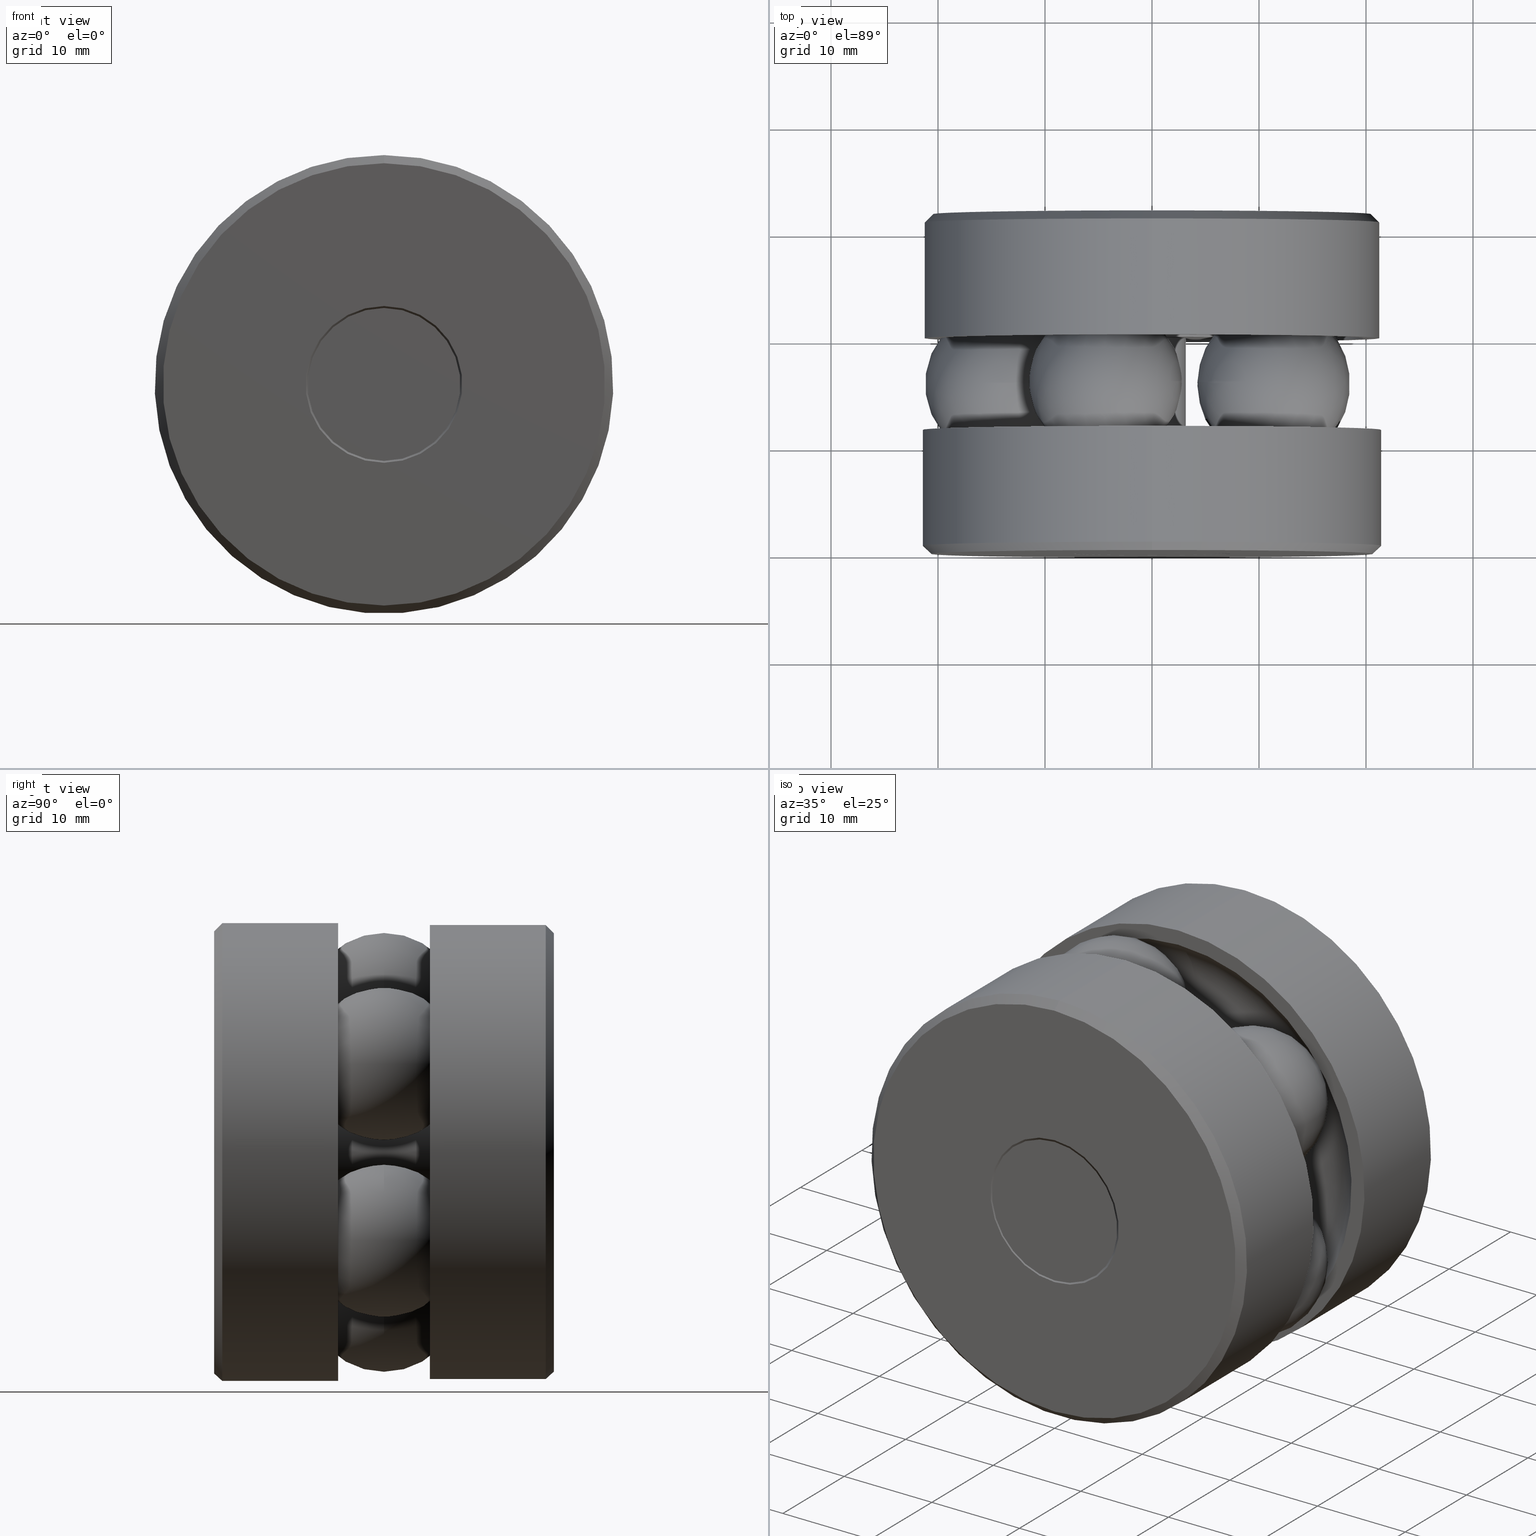
[diagram: canonical four-view strip — front | top / right | iso, engineering-drawing reading convention]
A machine part, canonical four-view strip (front | top / right | iso — engineering-drawing reading convention). The complete STEP part file that produces these views, byte-faithful:
ISO-10303-21;
HEADER;
FILE_DESCRIPTION (( 'STEP AP203' ),
    '1' );
FILE_NAME ('T-114RG_T-114RG-1011.step',
    '2016-02-04T15:34:12',
    ( '' ),
    ( '' ),
    'SwSTEP 2.0',
    'SolidWorks 2016',
    '' );
FILE_SCHEMA (( 'CONFIG_CONTROL_DESIGN' ));
ENDSEC;

DATA;
#1 = PLANE ( 'NONE',  #458 ) ;
#2 = DIRECTION ( 'NONE',  ( 0.0000000000000000000, 0.0000000000000000000, 1.000000000000000000 ) ) ;
#3 = CLOSED_SHELL ( 'NONE', ( #284, #32, #530, #192, #140, #474, #81, #34 ) ) ;
#4 = CARTESIAN_POINT ( 'NONE',  ( 0.0000000000000000000, 0.1583210678118654700, 0.0000000000000000000 ) ) ;
#5 = VERTEX_POINT ( 'NONE', #49 ) ;
#6 = FACE_BOUND ( 'NONE', #233, .T. ) ;
#7 = EDGE_CURVE ( 'NONE', #71, #71, #379, .T. ) ;
#8 = CARTESIAN_POINT ( 'NONE',  ( -0.2883210678118637800, -4.708883186648242100E-017, 0.0000000000000000000 ) ) ;
#9 = ORIENTED_EDGE ( 'NONE', *, *, #59, .F. ) ;
#10 = EDGE_LOOP ( 'NONE', ( #301 ) ) ;
#11 = DIRECTION ( 'NONE',  ( 0.0000000000000000000, 0.0000000000000000000, 1.000000000000000000 ) ) ;
#12 = CALENDAR_DATE ( 2016, 4, 2 ) ;
#13 = DIRECTION ( 'NONE',  ( 0.0000000000000000000, 0.0000000000000000000, 1.000000000000000000 ) ) ;
#14 = CARTESIAN_POINT ( 'NONE',  ( 0.0000000000000000000, 1.250000000000000000, 0.0000000000000000000 ) ) ;
#15 = FACE_OUTER_BOUND ( 'NONE', #168, .T. ) ;
#16 = AXIS2_PLACEMENT_3D ( 'NONE', #292, #538, #308 ) ;
#17 = ORIENTED_EDGE ( 'NONE', *, *, #314, .F. ) ;
#18 = DIRECTION ( 'NONE',  ( -0.0000000000000000000, 1.000000000000000000, -0.0000000000000000000 ) ) ;
#19 = DIRECTION ( 'NONE',  ( 0.0000000000000000000, 0.0000000000000000000, 1.000000000000000000 ) ) ;
#20 = EDGE_CURVE ( 'NONE', #21, #21, #477, .T. ) ;
#21 = VERTEX_POINT ( 'NONE', #332 ) ;
#22 = DIRECTION ( 'NONE',  ( 1.000000000000000000, 0.0000000000000000000, 0.0000000000000000000 ) ) ;
#23 = FACE_OUTER_BOUND ( 'NONE', #294, .T. ) ;
#24 = EDGE_LOOP ( 'NONE', ( #320 ) ) ;
#25 = EDGE_LOOP ( 'NONE', ( #182 ) ) ;
#26 = DIRECTION ( 'NONE',  ( 0.0000000000000000000, 0.0000000000000000000, 1.000000000000000000 ) ) ;
#27 = EDGE_LOOP ( 'NONE', ( #496 ) ) ;
#28 = DATE_AND_TIME ( #171, #295 ) ;
#29 = FACE_OUTER_BOUND ( 'NONE', #175, .T. ) ;
#30 = DIRECTION ( 'NONE',  ( 0.0000000000000000000, 0.0000000000000000000, 1.000000000000000000 ) ) ;
#31 = ORIENTED_EDGE ( 'NONE', *, *, #7, .F. ) ;
#32 = ADVANCED_FACE ( 'NONE', ( #273, #151 ), #262, .F. ) ;
#33 =( NAMED_UNIT ( * ) PLANE_ANGLE_UNIT ( ) SI_UNIT ( $, .RADIAN. ) );
#34 = ADVANCED_FACE ( 'NONE', ( #23, #132 ), #56, .T. ) ;
#35 = FACE_OUTER_BOUND ( 'NONE', #258, .T. ) ;
#36 = DIRECTION ( 'NONE',  ( -0.0000000000000000000, 1.000000000000000000, -0.0000000000000000000 ) ) ;
#37 = EDGE_LOOP ( 'NONE', ( #527 ) ) ;
#38 =( CONVERSION_BASED_UNIT ( 'INCH', #215 ) LENGTH_UNIT ( ) NAMED_UNIT ( #439 ) );
#39 = AXIS2_PLACEMENT_3D ( 'NONE', #40, #367, #88 ) ;
#40 = CARTESIAN_POINT ( 'NONE',  ( 0.0000000000000000000, 0.0000000000000000000, 0.0000000000000000000 ) ) ;
#41 = MANIFOLD_SOLID_BREP ( 'Revolve2[2]', #3 ) ;
#42 = CARTESIAN_POINT ( 'NONE',  ( 0.0000000000000000000, 0.7936000000000000800, 0.1300000000000000900 ) ) ;
#43 = ORIENTED_EDGE ( 'NONE', *, *, #340, .T. ) ;
#44 = CARTESIAN_POINT ( 'NONE',  ( 0.0000000000000000000, 1.250000000000000000, 0.0000000000000000000 ) ) ;
#45 = AXIS2_PLACEMENT_3D ( 'NONE', #210, #459, #380 ) ;
#46 = CARTESIAN_POINT ( 'NONE',  ( 0.0000000000000000000, 0.4563999999999996900, 0.7785499999999998500 ) ) ;
#47 = CARTESIAN_POINT ( 'NONE',  ( 0.0000000000000000000, 1.250000000000000000, 0.0000000000000000000 ) ) ;
#48 = PERSON_AND_ORGANIZATION ( #489, #304 ) ;
#49 = CARTESIAN_POINT ( 'NONE',  ( 0.0000000000000000000, 0.4563999999999996900, 0.8437500000000000000 ) ) ;
#50 = CIRCLE ( 'NONE', #450, 0.2812499999999989500 ) ;
#51 = ORIENTED_EDGE ( 'NONE', *, *, #288, .T. ) ;
#52 = EDGE_LOOP ( 'NONE', ( #520 ) ) ;
#53 = DIRECTION ( 'NONE',  ( -0.0000000000000000000, 1.000000000000000000, -0.0000000000000000000 ) ) ;
#54 = AXIS2_PLACEMENT_3D ( 'NONE', #4, #64, #138 ) ;
#55 = ORIENTED_EDGE ( 'NONE', *, *, #230, .T. ) ;
#56 = PLANE ( 'NONE',  #218 ) ;
#57 = FACE_BOUND ( 'NONE', #78, .T. ) ;
#58 = EDGE_LOOP ( 'NONE', ( #120 ) ) ;
#59 = EDGE_CURVE ( 'NONE', #476, #476, #369, .T. ) ;
#60 = DIRECTION ( 'NONE',  ( -0.0000000000000000000, 1.000000000000000000, -0.0000000000000000000 ) ) ;
#61 = ORIENTED_EDGE ( 'NONE', *, *, #390, .T. ) ;
#62 = DIRECTION ( 'NONE',  ( 0.0000000000000000000, -1.000000000000000000, 0.0000000000000000000 ) ) ;
#63 = CIRCLE ( 'NONE', #540, 0.2883210678118640100 ) ;
#64 = DIRECTION ( 'NONE',  ( -0.0000000000000000000, 1.000000000000000000, -0.0000000000000000000 ) ) ;
#65 = DIRECTION ( 'NONE',  ( 0.0000000000000000000, 0.0000000000000000000, 1.000000000000000000 ) ) ;
#66 = EDGE_LOOP ( 'NONE', ( #94 ) ) ;
#67 = EDGE_LOOP ( 'NONE', ( #101 ) ) ;
#68 = DIRECTION ( 'NONE',  ( -0.0000000000000000000, 1.000000000000000000, -0.0000000000000000000 ) ) ;
#69 = APPLICATION_PROTOCOL_DEFINITION ( 'international standard', 'config_control_design', 1994, #97 ) ;
#70 = DIRECTION ( 'NONE',  ( -0.0000000000000000000, 1.000000000000000000, -0.0000000000000000000 ) ) ;
#71 = VERTEX_POINT ( 'NONE', #46 ) ;
#72 = EDGE_LOOP ( 'NONE', ( #153 ) ) ;
#73 = CC_DESIGN_PERSON_AND_ORGANIZATION_ASSIGNMENT ( #184, #479, ( #515 ) ) ;
#74 = EDGE_LOOP ( 'NONE', ( #17 ) ) ;
#75 = DIRECTION ( 'NONE',  ( 0.0000000000000000000, 0.0000000000000000000, 1.000000000000000000 ) ) ;
#76 = AXIS2_PLACEMENT_3D ( 'NONE', #457, #128, #117 ) ;
#77 = FACE_OUTER_BOUND ( 'NONE', #229, .T. ) ;
#78 = EDGE_LOOP ( 'NONE', ( #31 ) ) ;
#79 = CLOSED_SHELL ( 'NONE', ( #399 ) ) ;
#80 = MECHANICAL_CONTEXT ( 'NONE', #97, 'mechanical' ) ;
#81 = ADVANCED_FACE ( 'NONE', ( #534, #465 ), #444, .T. ) ;
#82 = LOCAL_TIME ( 10, 34, 12.00000000000000000, #225 ) ;
#83 = CIRCLE ( 'NONE', #127, 0.1250000000000001900 ) ;
#84 = AXIS2_PLACEMENT_3D ( 'NONE', #190, #188, #22 ) ;
#85 = EDGE_LOOP ( 'NONE', ( #143 ) ) ;
#86 = DIRECTION ( 'NONE',  ( -0.0000000000000000000, 1.000000000000000000, -0.0000000000000000000 ) ) ;
#87 = DIRECTION ( 'NONE',  ( 0.0000000000000000000, -1.000000000000000000, 0.0000000000000000000 ) ) ;
#88 = DIRECTION ( 'NONE',  ( 1.000000000000000000, 0.0000000000000000000, 0.0000000000000000000 ) ) ;
#89 = ADVANCED_FACE ( 'NONE', ( #6, #355 ), #95, .T. ) ;
#90 = ORIENTED_EDGE ( 'NONE', *, *, #340, .F. ) ;
#91 = EDGE_CURVE ( 'NONE', #378, #378, #232, .T. ) ;
#92 = CARTESIAN_POINT ( 'NONE',  ( 0.0000000000000000000, 1.219999999999999500, 0.8367499999999999900 ) ) ;
#93 = DIRECTION ( 'NONE',  ( 0.0000000000000000000, -0.0000000000000000000, -1.000000000000000000 ) ) ;
#94 = ORIENTED_EDGE ( 'NONE', *, *, #7, .T. ) ;
#95 = CONICAL_SURFACE ( 'NONE', #275, 0.2812499999999989500, 0.7853981633974445000 ) ;
#96 = DIRECTION ( 'NONE',  ( 0.0000000000000000000, 0.0000000000000000000, 1.000000000000000000 ) ) ;
#97 = APPLICATION_CONTEXT ( 'configuration controlled 3d designs of mechanical parts and assemblies' ) ;
#98 = DIRECTION ( 'NONE',  ( -0.0000000000000000000, 1.000000000000000000, -0.0000000000000000000 ) ) ;
#99 = CARTESIAN_POINT ( 'NONE',  ( 0.0000000000000000000, 1.250000000000000000, 0.2883210678118640100 ) ) ;
#100 = ORIENTED_EDGE ( 'NONE', *, *, #20, .F. ) ;
#101 = ORIENTED_EDGE ( 'NONE', *, *, #441, .F. ) ;
#102 = AXIS2_PLACEMENT_3D ( 'NONE', #103, #152, #141 ) ;
#103 = CARTESIAN_POINT ( 'NONE',  ( -0.3289500000000000800, 0.4563999999999998100, 0.0000000000000000000 ) ) ;
#104 = CALENDAR_DATE ( 2016, 4, 2 ) ;
#105 = CYLINDRICAL_SURFACE ( 'NONE', #16, 0.8437500000000000000 ) ;
#106 = EDGE_LOOP ( 'NONE', ( #313 ) ) ;
#107 = DIRECTION ( 'NONE',  ( -0.0000000000000000000, 1.000000000000000000, -0.0000000000000000000 ) ) ;
#108 = DIRECTION ( 'NONE',  ( 0.0000000000000000000, -0.0000000000000000000, -1.000000000000000000 ) ) ;
#109 = CLOSED_SHELL ( 'NONE', ( #321 ) ) ;
#110 = CARTESIAN_POINT ( 'NONE',  ( 0.0000000000000000000, 0.4563999999999996900, 0.0000000000000000000 ) ) ;
#111 = PRODUCT_DEFINITION ( 'UNKNOWN', '', #274, #409 ) ;
#112 = VERTEX_POINT ( 'NONE', #253 ) ;
#113 = FACE_BOUND ( 'NONE', #311, .T. ) ;
#114 = CARTESIAN_POINT ( 'NONE',  ( 0.0000000000000000000, 0.7936000000000000800, 0.0000000000000000000 ) ) ;
#115 = AXIS2_PLACEMENT_3D ( 'NONE', #114, #70, #11 ) ;
#116 = CARTESIAN_POINT ( 'NONE',  ( 0.0000000000000000000, 1.093750000000000000, 0.0000000000000000000 ) ) ;
#117 = DIRECTION ( 'NONE',  ( 0.0000000000000000000, 0.0000000000000000000, 1.000000000000000000 ) ) ;
#118 = ORIENTED_EDGE ( 'NONE', *, *, #506, .T. ) ;
#119 = CARTESIAN_POINT ( 'NONE',  ( 0.0000000000000000000, -1.153371436285798000E-018, 0.0000000000000000000 ) ) ;
#120 = ORIENTED_EDGE ( 'NONE', *, *, #164, .T. ) ;
#121 = PERSON_AND_ORGANIZATION ( #489, #304 ) ;
#122 = CYLINDRICAL_SURFACE ( 'NONE', #494, 0.1250000000000001100 ) ;
#123 = CARTESIAN_POINT ( 'NONE',  ( 0.0000000000000000000, 0.0000000000000000000, 0.0000000000000000000 ) ) ;
#124 = DIRECTION ( 'NONE',  ( 0.0000000000000000000, 0.0000000000000000000, -1.000000000000000000 ) ) ;
#125 = ORIENTED_EDGE ( 'NONE', *, *, #314, .T. ) ;
#126 = DIRECTION ( 'NONE',  ( 0.0000000000000000000, 0.0000000000000000000, 1.000000000000000000 ) ) ;
#127 = AXIS2_PLACEMENT_3D ( 'NONE', #116, #107, #96 ) ;
#128 = DIRECTION ( 'NONE',  ( -0.0000000000000000000, 1.000000000000000000, -0.0000000000000000000 ) ) ;
#129 = CLOSED_SHELL ( 'NONE', ( #281, #242, #89, #361, #317 ) ) ;
#130 = EDGE_CURVE ( 'NONE', #272, #272, #454, .T. ) ;
#131 = VERTEX_POINT ( 'NONE', #533 ) ;
#132 = FACE_BOUND ( 'NONE', #72, .T. ) ;
#133 = EDGE_LOOP ( 'NONE', ( #90 ) ) ;
#134 = EDGE_LOOP ( 'NONE', ( #451 ) ) ;
#135 = DIRECTION ( 'NONE',  ( 0.3090169943749447300, 0.0000000000000000000, -0.9510565162951544200 ) ) ;
#136 = AXIS2_PLACEMENT_3D ( 'NONE', #224, #195, #330 ) ;
#137 = COORDINATED_UNIVERSAL_TIME_OFFSET ( 5, 0, .BEHIND. ) ;
#138 = DIRECTION ( 'NONE',  ( 0.0000000000000000000, 0.0000000000000000000, 1.000000000000000000 ) ) ;
#139 = FACE_OUTER_BOUND ( 'NONE', #67, .T. ) ;
#140 = ADVANCED_FACE ( 'NONE', ( #113, #517 ), #413, .T. ) ;
#141 = DIRECTION ( 'NONE',  ( 0.0000000000000000000, 0.0000000000000000000, 1.000000000000000000 ) ) ;
#142 = DIRECTION ( 'NONE',  ( -0.9510565162951544200, 0.0000000000000000000, -0.3090169943749447300 ) ) ;
#143 = ORIENTED_EDGE ( 'NONE', *, *, #506, .F. ) ;
#144 = ADVANCED_FACE ( 'NONE', ( #343, #522 ), #1, .T. ) ;
#145 = DIRECTION ( 'NONE',  ( -0.0000000000000000000, 1.000000000000000000, -0.0000000000000000000 ) ) ;
#146 = EDGE_LOOP ( 'NONE', ( #55 ) ) ;
#147 = DIRECTION ( 'NONE',  ( 0.0000000000000000000, -1.000000000000000000, 0.0000000000000000000 ) ) ;
#148 = VERTEX_POINT ( 'NONE', #92 ) ;
#149 = APPROVAL ( #400, 'UNSPECIFIED' ) ;
#150 = CARTESIAN_POINT ( 'NONE',  ( 0.0000000000000000000, 1.250000000000000000, 0.8067500000000003000 ) ) ;
#151 = FACE_OUTER_BOUND ( 'NONE', #221, .T. ) ;
#152 = DIRECTION ( 'NONE',  ( -0.0000000000000000000, 1.000000000000000000, 0.0000000000000000000 ) ) ;
#153 = ORIENTED_EDGE ( 'NONE', *, *, #230, .F. ) ;
#154 = ORIENTED_EDGE ( 'NONE', *, *, #490, .T. ) ;
#155 = DIRECTION ( 'NONE',  ( 0.0000000000000000000, 0.0000000000000000000, 1.000000000000000000 ) ) ;
#156 =( LENGTH_UNIT ( ) NAMED_UNIT ( * ) SI_UNIT ( $, .METRE. ) );
#157 = EDGE_LOOP ( 'NONE', ( #61 ) ) ;
#158 = LOCAL_TIME ( 10, 34, 12.00000000000000000, #277 ) ;
#159 = FACE_BOUND ( 'NONE', #282, .T. ) ;
#160 = EDGE_LOOP ( 'NONE', ( #208 ) ) ;
#161 = AXIS2_PLACEMENT_3D ( 'NONE', #245, #53, #26 ) ;
#162 = SHAPE_DEFINITION_REPRESENTATION ( #176, #270 ) ;
#163 = CLOSED_SHELL ( 'NONE', ( #500 ) ) ;
#164 = EDGE_CURVE ( 'NONE', #148, #148, #249, .T. ) ;
#165 = CARTESIAN_POINT ( 'NONE',  ( 0.0000000000000000000, 0.0000000000000000000, 0.0000000000000000000 ) ) ;
#166 = CARTESIAN_POINT ( 'NONE',  ( 0.0000000000000000000, 0.03000000000000013800, 0.0000000000000000000 ) ) ;
#167 = ORIENTED_EDGE ( 'NONE', *, *, #441, .T. ) ;
#168 = EDGE_LOOP ( 'NONE', ( #213 ) ) ;
#169 = CARTESIAN_POINT ( 'NONE',  ( 0.0000000000000000000, 0.6250000000000000000, 0.0000000000000000000 ) ) ;
#170 = EDGE_LOOP ( 'NONE', ( #186 ) ) ;
#171 = CALENDAR_DATE ( 2016, 4, 2 ) ;
#172 = FACE_BOUND ( 'NONE', #27, .T. ) ;
#173 = AXIS2_PLACEMENT_3D ( 'NONE', #362, #452, #418 ) ;
#174 = CARTESIAN_POINT ( 'NONE',  ( -0.1711181606351331300, 0.6250000000000000000, -0.5266475458984394300 ) ) ;
#175 = EDGE_LOOP ( 'NONE', ( #125 ) ) ;
#176 = PRODUCT_DEFINITION_SHAPE ( 'NONE', 'NONE',  #111 ) ;
#177 = DIRECTION ( 'NONE',  ( 0.3090169943749582200, 0.0000000000000000000, 0.9510565162951500900 ) ) ;
#178 = PERSON_AND_ORGANIZATION_ROLE ( 'classification_officer' ) ;
#179 = SPHERICAL_SURFACE ( 'NONE', #436, 0.2810000000000000800 ) ;
#180 = EDGE_LOOP ( 'NONE', ( #356 ) ) ;
#181 = CC_DESIGN_APPROVAL ( #149, ( #111 ) ) ;
#182 = ORIENTED_EDGE ( 'NONE', *, *, #199, .T. ) ;
#183 = AXIS2_PLACEMENT_3D ( 'NONE', #123, #98, #126 ) ;
#184 = PERSON_AND_ORGANIZATION ( #489, #304 ) ;
#185 = FACE_BOUND ( 'NONE', #85, .T. ) ;
#186 = ORIENTED_EDGE ( 'NONE', *, *, #199, .F. ) ;
#187 = DIRECTION ( 'NONE',  ( 0.9510565162951500900, 0.0000000000000000000, -0.3090169943749582200 ) ) ;
#188 = DIRECTION ( 'NONE',  ( 0.0000000000000000000, 0.0000000000000000000, -1.000000000000000000 ) ) ;
#189 = ORIENTED_EDGE ( 'NONE', *, *, #288, .F. ) ;
#190 = CARTESIAN_POINT ( 'NONE',  ( -0.5537500000000000800, 0.6250000000000000000, 0.0000000000000000000 ) ) ;
#191 = APPROVAL_ROLE ( '' ) ;
#192 = ADVANCED_FACE ( 'NONE', ( #77, #427 ), #329, .F. ) ;
#193 = AXIS2_PLACEMENT_3D ( 'NONE', #119, #87, #124 ) ;
#194 = CYLINDRICAL_SURFACE ( 'NONE', #283, 0.8367499999999999900 ) ;
#195 = DIRECTION ( 'NONE',  ( -0.0000000000000000000, 1.000000000000000000, -0.0000000000000000000 ) ) ;
#196 = EDGE_LOOP ( 'NONE', ( #433 ) ) ;
#197 = APPROVAL_STATUS ( 'not_yet_approved' ) ;
#198 = ADVANCED_FACE ( 'NONE', ( #315, #216 ), #416, .F. ) ;
#199 = EDGE_CURVE ( 'NONE', #5, #5, #206, .T. ) ;
#200 = PLANE ( 'NONE',  #486 ) ;
#201 = CLOSED_SHELL ( 'NONE', ( #431 ) ) ;
#202 = MANIFOLD_SOLID_BREP ( 'Revolve2[3]', #228 ) ;
#203 = CARTESIAN_POINT ( 'NONE',  ( 0.0000000000000000000, 0.4563999999999998100, 0.3289500000000001300 ) ) ;
#204 = DATE_TIME_ROLE ( 'classification_date' ) ;
#205 = CARTESIAN_POINT ( 'NONE',  ( 0.0000000000000000000, 0.4563999999999998600, 0.1300000000000000000 ) ) ;
#206 = CIRCLE ( 'NONE', #481, 0.8437500000000000000 ) ;
#207 = DIRECTION ( 'NONE',  ( -0.0000000000000000000, 1.000000000000000000, -0.0000000000000000000 ) ) ;
#208 = ORIENTED_EDGE ( 'NONE', *, *, #371, .T. ) ;
#209 = ORIENTED_EDGE ( 'NONE', *, *, #91, .T. ) ;
#210 = CARTESIAN_POINT ( 'NONE',  ( 0.0000000000000000000, 0.4563999999999996900, 0.0000000000000000000 ) ) ;
#211 = FACE_OUTER_BOUND ( 'NONE', #462, .T. ) ;
#212 = EDGE_LOOP ( 'NONE', ( #118 ) ) ;
#213 = ORIENTED_EDGE ( 'NONE', *, *, #260, .T. ) ;
#214 = CC_DESIGN_PERSON_AND_ORGANIZATION_ASSIGNMENT ( #384, #370, ( #111 ) ) ;
#215 = LENGTH_MEASURE_WITH_UNIT ( LENGTH_MEASURE( 0.02539999999999999900 ), #156 );
#216 = FACE_OUTER_BOUND ( 'NONE', #24, .T. ) ;
#217 = CARTESIAN_POINT ( 'NONE',  ( -0.2812499999999987200, 0.0000000000000000000, 0.0000000000000000000 ) ) ;
#218 = AXIS2_PLACEMENT_3D ( 'NONE', #324, #344, #510 ) ;
#219 = DIRECTION ( 'NONE',  ( 0.0000000000000000000, 0.0000000000000000000, 1.000000000000000000 ) ) ;
#220 = DIRECTION ( 'NONE',  ( -0.0000000000000000000, 1.000000000000000000, -0.0000000000000000000 ) ) ;
#221 = EDGE_LOOP ( 'NONE', ( #9 ) ) ;
#222 = EDGE_LOOP ( 'NONE', ( #43 ) ) ;
#223 = PLANE ( 'NONE',  #269 ) ;
#224 = CARTESIAN_POINT ( 'NONE',  ( 0.0000000000000000000, 0.1562499999999999700, 0.0000000000000000000 ) ) ;
#225 = COORDINATED_UNIVERSAL_TIME_OFFSET ( 5, 0, .BEHIND. ) ;
#226 = CARTESIAN_POINT ( 'NONE',  ( 0.0000000000000000000, 0.6250000000000000000, 0.0000000000000000000 ) ) ;
#227 = FACE_BOUND ( 'NONE', #134, .T. ) ;
#228 = CLOSED_SHELL ( 'NONE', ( #395, #358, #144, #471, #435, #240, #198, #501 ) ) ;
#229 = EDGE_LOOP ( 'NONE', ( #51 ) ) ;
#230 = EDGE_CURVE ( 'NONE', #464, #464, #63, .T. ) ;
#231 = VERTEX_POINT ( 'NONE', #203 ) ;
#232 = CIRCLE ( 'NONE', #303, 0.7785499999999998500 ) ;
#233 = EDGE_LOOP ( 'NONE', ( #167 ) ) ;
#234 = EDGE_LOOP ( 'NONE', ( #100 ) ) ;
#235 = CARTESIAN_POINT ( 'NONE',  ( 0.4479931606351243400, 0.6250000000000000000, -0.3254860834569610100 ) ) ;
#236 = AXIS2_PLACEMENT_3D ( 'NONE', #306, #86, #219 ) ;
#237 = LOCAL_TIME ( 10, 34, 12.00000000000000000, #348 ) ;
#238 = CIRCLE ( 'NONE', #528, 0.8437500000000000000 ) ;
#239 = EDGE_LOOP ( 'NONE', ( #154 ) ) ;
#240 = ADVANCED_FACE ( 'NONE', ( #407, #185 ), #429, .T. ) ;
#241 = DIRECTION ( 'NONE',  ( -0.0000000000000000000, 1.000000000000000000, 0.0000000000000000000 ) ) ;
#242 = ADVANCED_FACE ( 'NONE', ( #508 ), #349, .T. ) ;
#243 = CARTESIAN_POINT ( 'NONE',  ( 0.0000000000000000000, 1.091678932188134600, 0.1300000000000001700 ) ) ;
#244 = CARTESIAN_POINT ( 'NONE',  ( 0.0000000000000000000, 0.7936000000000000800, 0.0000000000000000000 ) ) ;
#245 = CARTESIAN_POINT ( 'NONE',  ( 0.0000000000000000000, 0.0000000000000000000, 0.0000000000000000000 ) ) ;
#246 = CC_DESIGN_DATE_AND_TIME_ASSIGNMENT ( #468, #470, ( #111 ) ) ;
#247 = CARTESIAN_POINT ( 'NONE',  ( 0.0000000000000000000, 0.1583210678118654700, 0.1300000000000000000 ) ) ;
#248 = VERTEX_POINT ( 'NONE', #285 ) ;
#249 = CIRCLE ( 'NONE', #428, 0.8367499999999999900 ) ;
#250 = CARTESIAN_POINT ( 'NONE',  ( 0.0000000000000000000, 0.7936000000000000800, 0.7785499999999998500 ) ) ;
#251 = DIRECTION ( 'NONE',  ( -0.0000000000000000000, 1.000000000000000000, -0.0000000000000000000 ) ) ;
#252 = AXIS2_PLACEMENT_3D ( 'NONE', #47, #62, #425 ) ;
#253 = CARTESIAN_POINT ( 'NONE',  ( 0.0000000000000000000, 1.093750000000000000, 0.1250000000000001900 ) ) ;
#254 = DIRECTION ( 'NONE',  ( 0.0000000000000000000, -0.0000000000000000000, -1.000000000000000000 ) ) ;
#255 = DIRECTION ( 'NONE',  ( 0.0000000000000000000, 0.0000000000000000000, 1.000000000000000000 ) ) ;
#256 = APPROVAL_DATE_TIME ( #357, #302 ) ;
#257 = CONICAL_SURFACE ( 'NONE', #419, 0.8437500000000000000, 0.7853981633974437300 ) ;
#258 = EDGE_LOOP ( 'NONE', ( #189 ) ) ;
#259 = AXIS2_PLACEMENT_3D ( 'NONE', #278, #443, #446 ) ;
#260 = EDGE_CURVE ( 'NONE', #368, #368, #498, .T. ) ;
#261 = VERTEX_POINT ( 'NONE', #537 ) ;
#262 = CYLINDRICAL_SURFACE ( 'NONE', #183, 0.1300000000000001400 ) ;
#263 = DIRECTION ( 'NONE',  ( 0.0000000000000000000, -0.0000000000000000000, -1.000000000000000000 ) ) ;
#264 = EDGE_LOOP ( 'NONE', ( #423 ) ) ;
#265 = DIRECTION ( 'NONE',  ( 0.0000000000000000000, -1.000000000000000000, 0.0000000000000000000 ) ) ;
#266 = DIRECTION ( 'NONE',  ( 0.0000000000000000000, 0.0000000000000000000, 1.000000000000000000 ) ) ;
#267 = APPROVAL_PERSON_ORGANIZATION ( #373, #302, #402 ) ;
#268 = CONICAL_SURFACE ( 'NONE', #347, 0.1250000000000000300, 0.7853981633974442800 ) ;
#269 = AXIS2_PLACEMENT_3D ( 'NONE', #217, #352, #108 ) ;
#270 = ADVANCED_BREP_SHAPE_REPRESENTATION ( 'T-114RG_T-114RG-1011', ( #365, #41, #202, #382, #493, #484, #447, #325, #39 ), #463 ) ;
#271 = DIRECTION ( 'NONE',  ( 0.0000000000000000000, 0.0000000000000000000, 1.000000000000000000 ) ) ;
#272 = VERTEX_POINT ( 'NONE', #150 ) ;
#273 = FACE_OUTER_BOUND ( 'NONE', #239, .T. ) ;
#274 = PRODUCT_DEFINITION_FORMATION_WITH_SPECIFIED_SOURCE ( 'ANY', '', #515, .NOT_KNOWN. ) ;
#275 = AXIS2_PLACEMENT_3D ( 'NONE', #14, #417, #19 ) ;
#276 = DIRECTION ( 'NONE',  ( -0.0000000000000000000, 1.000000000000000000, -0.0000000000000000000 ) ) ;
#277 = COORDINATED_UNIVERSAL_TIME_OFFSET ( 5, 0, .BEHIND. ) ;
#278 = CARTESIAN_POINT ( 'NONE',  ( 0.0000000000000000000, 1.091678932188134600, 0.0000000000000000000 ) ) ;
#279 = CONICAL_SURFACE ( 'NONE', #236, 0.1300000000000001700, 0.7853981633974431700 ) ;
#280 = CARTESIAN_POINT ( 'NONE',  ( 0.0000000000000000000, -1.153371436285798000E-018, 0.0000000000000000000 ) ) ;
#281 = ADVANCED_FACE ( 'NONE', ( #305 ), #223, .T. ) ;
#282 = EDGE_LOOP ( 'NONE', ( #487 ) ) ;
#283 = AXIS2_PLACEMENT_3D ( 'NONE', #165, #145, #75 ) ;
#284 = ADVANCED_FACE ( 'NONE', ( #492, #172 ), #279, .F. ) ;
#285 = CARTESIAN_POINT ( 'NONE',  ( 0.0000000000000000000, 0.03000000000000013800, 0.8437500000000000000 ) ) ;
#286 = ORIENTED_EDGE ( 'NONE', *, *, #371, .F. ) ;
#287 = DIRECTION ( 'NONE',  ( 0.0000000000000000000, 0.0000000000000000000, 1.000000000000000000 ) ) ;
#288 = EDGE_CURVE ( 'NONE', #261, #261, #385, .T. ) ;
#289 = CARTESIAN_POINT ( 'NONE',  ( -0.8437500000000000000, 0.4563999999999996900, 0.0000000000000000000 ) ) ;
#290 = CARTESIAN_POINT ( 'NONE',  ( 0.0000000000000000000, 1.250000000000000000, 0.2812499999999989500 ) ) ;
#291 = DIRECTION ( 'NONE',  ( -0.0000000000000000000, 1.000000000000000000, -0.0000000000000000000 ) ) ;
#292 = CARTESIAN_POINT ( 'NONE',  ( 0.0000000000000000000, 0.0000000000000000000, 0.0000000000000000000 ) ) ;
#293 = PLANE ( 'NONE',  #364 ) ;
#294 = EDGE_LOOP ( 'NONE', ( #398 ) ) ;
#295 = LOCAL_TIME ( 10, 34, 12.00000000000000000, #391 ) ;
#296 = CIRCLE ( 'NONE', #316, 0.2812499999999987200 ) ;
#297 = AXIS2_PLACEMENT_3D ( 'NONE', #410, #220, #488 ) ;
#298 = DIRECTION ( 'NONE',  ( 0.5877852522924802400, -0.0000000000000000000, 0.8090169943749422300 ) ) ;
#299 = DIRECTION ( 'NONE',  ( 0.0000000000000000000, 0.0000000000000000000, 1.000000000000000000 ) ) ;
#300 = CIRCLE ( 'NONE', #388, 0.3289500000000001300 ) ;
#301 = ORIENTED_EDGE ( 'NONE', *, *, #523, .T. ) ;
#302 = APPROVAL ( #467, 'UNSPECIFIED' ) ;
#303 = AXIS2_PLACEMENT_3D ( 'NONE', #244, #68, #437 ) ;
#304 = ORGANIZATION ( 'UNSPECIFIED', 'UNSPECIFIED', '' ) ;
#305 = FACE_OUTER_BOUND ( 'NONE', #74, .T. ) ;
#306 = CARTESIAN_POINT ( 'NONE',  ( 0.0000000000000000000, 1.091678932188134600, 0.0000000000000000000 ) ) ;
#307 = CARTESIAN_POINT ( 'NONE',  ( 0.0000000000000000000, 0.0000000000000000000, 0.0000000000000000000 ) ) ;
#308 = DIRECTION ( 'NONE',  ( 0.0000000000000000000, 0.0000000000000000000, 1.000000000000000000 ) ) ;
#309 = CONICAL_SURFACE ( 'NONE', #193, 0.2883210678118637800, 0.7853981633974429500 ) ;
#310 = AXIS2_PLACEMENT_3D ( 'NONE', #235, #298, #328 ) ;
#311 = EDGE_LOOP ( 'NONE', ( #209 ) ) ;
#312 = DIRECTION ( 'NONE',  ( 0.0000000000000000000, 0.0000000000000000000, 1.000000000000000000 ) ) ;
#313 = ORIENTED_EDGE ( 'NONE', *, *, #466, .F. ) ;
#314 = EDGE_CURVE ( 'NONE', #131, #131, #296, .T. ) ;
#315 = FACE_OUTER_BOUND ( 'NONE', #66, .T. ) ;
#316 = AXIS2_PLACEMENT_3D ( 'NONE', #386, #383, #346 ) ;
#317 = ADVANCED_FACE ( 'NONE', ( #29, #159 ), #268, .T. ) ;
#318 = APPROVAL_DATE_TIME ( #420, #480 ) ;
#319 = FACE_OUTER_BOUND ( 'NONE', #37, .T. ) ;
#320 = ORIENTED_EDGE ( 'NONE', *, *, #523, .F. ) ;
#321 = ADVANCED_FACE ( 'NONE', ( ), #469, .T. ) ;
#322 = DIRECTION ( 'NONE',  ( 0.0000000000000000000, 0.0000000000000000000, -1.000000000000000000 ) ) ;
#323 = SECURITY_CLASSIFICATION_LEVEL ( 'unclassified' ) ;
#324 = CARTESIAN_POINT ( 'NONE',  ( -0.2883210678118640100, 1.250000000000000000, 0.0000000000000000000 ) ) ;
#325 = MANIFOLD_SOLID_BREP ( 'BALLS[4]', #109 ) ;
#326 = CC_DESIGN_APPROVAL ( #302, ( #274 ) ) ;
#327 = CARTESIAN_POINT ( 'NONE',  ( -0.3289500000000001300, 0.7936000000000000800, 0.0000000000000000000 ) ) ;
#328 = DIRECTION ( 'NONE',  ( -0.8090169943749422300, 0.0000000000000000000, 0.5877852522924802400 ) ) ;
#329 = TOROIDAL_SURFACE ( 'NONE', #499, 0.5537499999999999600, 0.2809999999999999700 ) ;
#330 = DIRECTION ( 'NONE',  ( 0.0000000000000000000, 0.0000000000000000000, 1.000000000000000000 ) ) ;
#331 = AXIS2_PLACEMENT_3D ( 'NONE', #422, #406, #266 ) ;
#332 = CARTESIAN_POINT ( 'NONE',  ( 0.0000000000000000000, 0.7936000000000000800, 0.8367499999999999900 ) ) ;
#333 = APPROVAL_PERSON_ORGANIZATION ( #430, #480, #191 ) ;
#334 = DIRECTION ( 'NONE',  ( -0.0000000000000000000, 1.000000000000000000, -0.0000000000000000000 ) ) ;
#335 = FACE_OUTER_BOUND ( 'NONE', #106, .T. ) ;
#336 = ORIENTED_EDGE ( 'NONE', *, *, #414, .F. ) ;
#337 = CARTESIAN_POINT ( 'NONE',  ( 0.0000000000000000000, 1.219999999999999500, 0.0000000000000000000 ) ) ;
#338 = AXIS2_PLACEMENT_3D ( 'NONE', #507, #505, #504 ) ;
#339 = DIRECTION ( 'NONE',  ( -0.0000000000000000000, 1.000000000000000000, -0.0000000000000000000 ) ) ;
#340 = EDGE_CURVE ( 'NONE', #532, #532, #483, .T. ) ;
#341 = DIRECTION ( 'NONE',  ( -0.0000000000000000000, 1.000000000000000000, -0.0000000000000000000 ) ) ;
#342 = VERTEX_POINT ( 'NONE', #205 ) ;
#343 = FACE_BOUND ( 'NONE', #160, .T. ) ;
#344 = DIRECTION ( 'NONE',  ( -0.0000000000000000000, 1.000000000000000000, 0.0000000000000000000 ) ) ;
#345 = UNCERTAINTY_MEASURE_WITH_UNIT (LENGTH_MEASURE( 1.000000000000000100E-005 ), #38, 'distance_accuracy_value', 'NONE');
#346 = DIRECTION ( 'NONE',  ( 0.0000000000000000000, 0.0000000000000000000, 1.000000000000000000 ) ) ;
#347 = AXIS2_PLACEMENT_3D ( 'NONE', #415, #455, #322 ) ;
#348 = COORDINATED_UNIVERSAL_TIME_OFFSET ( 5, 0, .BEHIND. ) ;
#349 = PLANE ( 'NONE',  #173 ) ;
#350 = FACE_OUTER_BOUND ( 'NONE', #170, .T. ) ;
#351 = CLOSED_SHELL ( 'NONE', ( #529 ) ) ;
#352 = DIRECTION ( 'NONE',  ( 0.0000000000000000000, -1.000000000000000000, 0.0000000000000000000 ) ) ;
#353 = VERTEX_POINT ( 'NONE', #290 ) ;
#354 = CC_DESIGN_PERSON_AND_ORGANIZATION_ASSIGNMENT ( #121, #366, ( #274 ) ) ;
#355 = FACE_OUTER_BOUND ( 'NONE', #52, .T. ) ;
#356 = ORIENTED_EDGE ( 'NONE', *, *, #130, .F. ) ;
#357 = DATE_AND_TIME ( #460, #541 ) ;
#358 = ADVANCED_FACE ( 'NONE', ( #392, #375 ), #257, .T. ) ;
#359 = FACE_OUTER_BOUND ( 'NONE', #264, .T. ) ;
#360 = EDGE_LOOP ( 'NONE', ( #514 ) ) ;
#361 = ADVANCED_FACE ( 'NONE', ( #15, #139 ), #122, .T. ) ;
#362 = CARTESIAN_POINT ( 'NONE',  ( 0.0000000000000000000, 1.250000000000000000, 0.0000000000000000000 ) ) ;
#363 = PERSON_AND_ORGANIZATION_ROLE ( 'design_supplier' ) ;
#364 = AXIS2_PLACEMENT_3D ( 'NONE', #289, #241, #438 ) ;
#365 = MANIFOLD_SOLID_BREP ( 'Revolve2[1]', #129 ) ;
#366 = PERSON_AND_ORGANIZATION_ROLE ( 'creator' ) ;
#367 = DIRECTION ( 'NONE',  ( 0.0000000000000000000, 0.0000000000000000000, 1.000000000000000000 ) ) ;
#368 = VERTEX_POINT ( 'NONE', #539 ) ;
#369 = CIRCLE ( 'NONE', #115, 0.1300000000000000900 ) ;
#370 = PERSON_AND_ORGANIZATION_ROLE ( 'creator' ) ;
#371 = EDGE_CURVE ( 'NONE', #453, #453, #542, .T. ) ;
#372 = CARTESIAN_POINT ( 'NONE',  ( 0.0000000000000000000, 0.4563999999999998100, 0.0000000000000000000 ) ) ;
#373 = PERSON_AND_ORGANIZATION ( #489, #304 ) ;
#374 = DIRECTION ( 'NONE',  ( -0.5877852522924685900, 0.0000000000000000000, 0.8090169943749507800 ) ) ;
#375 = FACE_OUTER_BOUND ( 'NONE', #503, .T. ) ;
#376 = DIRECTION ( 'NONE',  ( 0.0000000000000000000, 0.0000000000000000000, 1.000000000000000000 ) ) ;
#377 = AXIS2_PLACEMENT_3D ( 'NONE', #396, #291, #287 ) ;
#378 = VERTEX_POINT ( 'NONE', #250 ) ;
#379 = CIRCLE ( 'NONE', #45, 0.7785499999999998500 ) ;
#380 = DIRECTION ( 'NONE',  ( 0.0000000000000000000, 0.0000000000000000000, 1.000000000000000000 ) ) ;
#381 = CC_DESIGN_PERSON_AND_ORGANIZATION_ASSIGNMENT ( #525, #363, ( #274 ) ) ;
#382 = MANIFOLD_SOLID_BREP ( 'Revolve3', #201 ) ;
#383 = DIRECTION ( 'NONE',  ( -0.0000000000000000000, 1.000000000000000000, -0.0000000000000000000 ) ) ;
#384 = PERSON_AND_ORGANIZATION ( #489, #304 ) ;
#385 = CIRCLE ( 'NONE', #297, 0.3289500000000001300 ) ;
#386 = CARTESIAN_POINT ( 'NONE',  ( 0.0000000000000000000, 0.0000000000000000000, 0.0000000000000000000 ) ) ;
#387 = CARTESIAN_POINT ( 'NONE',  ( -0.8367499999999999900, 0.7936000000000000800, 0.0000000000000000000 ) ) ;
#388 = AXIS2_PLACEMENT_3D ( 'NONE', #372, #207, #478 ) ;
#389 = ORIENTED_EDGE ( 'NONE', *, *, #164, .F. ) ;
#390 = EDGE_CURVE ( 'NONE', #353, #353, #50, .T. ) ;
#391 = COORDINATED_UNIVERSAL_TIME_OFFSET ( 5, 0, .BEHIND. ) ;
#392 = FACE_BOUND ( 'NONE', #222, .T. ) ;
#393 = APPROVAL_ROLE ( '' ) ;
#394 = AXIS2_PLACEMENT_3D ( 'NONE', #174, #187, #177 ) ;
#395 = ADVANCED_FACE ( 'NONE', ( #359, #350 ), #105, .T. ) ;
#396 = CARTESIAN_POINT ( 'NONE',  ( 0.0000000000000000000, -9.302429229667903700E-017, 0.0000000000000000000 ) ) ;
#397 = CIRCLE ( 'NONE', #338, 0.1300000000000000000 ) ;
#398 = ORIENTED_EDGE ( 'NONE', *, *, #130, .T. ) ;
#399 = ADVANCED_FACE ( 'NONE', ( ), #526, .T. ) ;
#400 = APPROVAL_STATUS ( 'not_yet_approved' ) ;
#401 = CARTESIAN_POINT ( 'NONE',  ( 0.4479931606351290600, 0.6250000000000000000, 0.3254860834569545100 ) ) ;
#402 = APPROVAL_ROLE ( '' ) ;
#403 = SECURITY_CLASSIFICATION ( '', '', #323 ) ;
#404 = DIRECTION ( 'NONE',  ( -0.0000000000000000000, 1.000000000000000000, -0.0000000000000000000 ) ) ;
#405 =( NAMED_UNIT ( * ) SI_UNIT ( $, .STERADIAN. ) SOLID_ANGLE_UNIT ( ) );
#406 = DIRECTION ( 'NONE',  ( -0.0000000000000000000, 1.000000000000000000, -0.0000000000000000000 ) ) ;
#407 = FACE_OUTER_BOUND ( 'NONE', #10, .T. ) ;
#408 = AXIS2_PLACEMENT_3D ( 'NONE', #387, #265, #263 ) ;
#409 = DESIGN_CONTEXT ( 'detailed design', #475, 'design' ) ;
#410 = CARTESIAN_POINT ( 'NONE',  ( 0.0000000000000000000, 0.7936000000000000800, 0.0000000000000000000 ) ) ;
#411 = SPHERICAL_SURFACE ( 'NONE', #310, 0.2810000000000000800 ) ;
#412 = EDGE_LOOP ( 'NONE', ( #389 ) ) ;
#413 = PLANE ( 'NONE',  #408 ) ;
#414 = EDGE_CURVE ( 'NONE', #248, #248, #238, .T. ) ;
#415 = CARTESIAN_POINT ( 'NONE',  ( 0.0000000000000000000, 0.1562499999999999700, 0.0000000000000000000 ) ) ;
#416 = TOROIDAL_SURFACE ( 'NONE', #518, 0.5537499999999999600, 0.2810000000000000800 ) ;
#417 = DIRECTION ( 'NONE',  ( -0.0000000000000000000, 1.000000000000000000, -0.0000000000000000000 ) ) ;
#418 = DIRECTION ( 'NONE',  ( 0.0000000000000000000, 0.0000000000000000000, 1.000000000000000000 ) ) ;
#419 = AXIS2_PLACEMENT_3D ( 'NONE', #445, #440, #271 ) ;
#420 = DATE_AND_TIME ( #512, #82 ) ;
#421 = FACE_OUTER_BOUND ( 'NONE', #412, .T. ) ;
#422 = CARTESIAN_POINT ( 'NONE',  ( 0.0000000000000000000, 1.250000000000000000, 0.0000000000000000000 ) ) ;
#423 = ORIENTED_EDGE ( 'NONE', *, *, #414, .T. ) ;
#424 = DIRECTION ( 'NONE',  ( 0.0000000000000000000, -1.000000000000000000, 0.0000000000000000000 ) ) ;
#425 = DIRECTION ( 'NONE',  ( 0.0000000000000000000, 0.0000000000000000000, -1.000000000000000000 ) ) ;
#426 = CC_DESIGN_PERSON_AND_ORGANIZATION_ASSIGNMENT ( #448, #178, ( #403 ) ) ;
#427 = FACE_OUTER_BOUND ( 'NONE', #196, .T. ) ;
#428 = AXIS2_PLACEMENT_3D ( 'NONE', #337, #334, #65 ) ;
#429 = PLANE ( 'NONE',  #102 ) ;
#430 = PERSON_AND_ORGANIZATION ( #489, #304 ) ;
#431 = ADVANCED_FACE ( 'NONE', ( ), #449, .T. ) ;
#432 = FACE_OUTER_BOUND ( 'NONE', #212, .T. ) ;
#433 = ORIENTED_EDGE ( 'NONE', *, *, #91, .F. ) ;
#434 = DIRECTION ( 'NONE',  ( -0.8090169943749507800, 0.0000000000000000000, -0.5877852522924685900 ) ) ;
#435 = ADVANCED_FACE ( 'NONE', ( #432, #335 ), #513, .F. ) ;
#436 = AXIS2_PLACEMENT_3D ( 'NONE', #401, #374, #434 ) ;
#437 = DIRECTION ( 'NONE',  ( 0.0000000000000000000, 0.0000000000000000000, 1.000000000000000000 ) ) ;
#438 = DIRECTION ( 'NONE',  ( 0.0000000000000000000, 0.0000000000000000000, 1.000000000000000000 ) ) ;
#439 = DIMENSIONAL_EXPONENTS ( 1.000000000000000000, 0.0000000000000000000, 0.0000000000000000000, 0.0000000000000000000, 0.0000000000000000000, 0.0000000000000000000, 0.0000000000000000000 ) ;
#440 = DIRECTION ( 'NONE',  ( -0.0000000000000000000, 1.000000000000000000, -0.0000000000000000000 ) ) ;
#441 = EDGE_CURVE ( 'NONE', #112, #112, #83, .T. ) ;
#442 = VERTEX_POINT ( 'NONE', #243 ) ;
#443 = DIRECTION ( 'NONE',  ( -0.0000000000000000000, 1.000000000000000000, -0.0000000000000000000 ) ) ;
#444 = CONICAL_SURFACE ( 'NONE', #252, 0.8067500000000003000, 0.7853981633974346200 ) ;
#445 = CARTESIAN_POINT ( 'NONE',  ( 0.0000000000000000000, 0.03000000000000013800, 0.0000000000000000000 ) ) ;
#446 = DIRECTION ( 'NONE',  ( 0.0000000000000000000, 0.0000000000000000000, 1.000000000000000000 ) ) ;
#447 = MANIFOLD_SOLID_BREP ( 'BALLS[3]', #163 ) ;
#448 = PERSON_AND_ORGANIZATION ( #489, #304 ) ;
#449 = SPHERICAL_SURFACE ( 'NONE', #84, 0.2810000000000000800 ) ;
#450 = AXIS2_PLACEMENT_3D ( 'NONE', #524, #341, #312 ) ;
#451 = ORIENTED_EDGE ( 'NONE', *, *, #466, .T. ) ;
#452 = DIRECTION ( 'NONE',  ( -0.0000000000000000000, 1.000000000000000000, 0.0000000000000000000 ) ) ;
#453 = VERTEX_POINT ( 'NONE', #509 ) ;
#454 = CIRCLE ( 'NONE', #331, 0.8067500000000003000 ) ;
#455 = DIRECTION ( 'NONE',  ( 0.0000000000000000000, -1.000000000000000000, 0.0000000000000000000 ) ) ;
#456 = CC_DESIGN_DATE_AND_TIME_ASSIGNMENT ( #519, #204, ( #403 ) ) ;
#457 = CARTESIAN_POINT ( 'NONE',  ( 0.0000000000000000000, 0.7936000000000000800, 0.0000000000000000000 ) ) ;
#458 = AXIS2_PLACEMENT_3D ( 'NONE', #8, #424, #254 ) ;
#459 = DIRECTION ( 'NONE',  ( -0.0000000000000000000, 1.000000000000000000, -0.0000000000000000000 ) ) ;
#460 = CALENDAR_DATE ( 2016, 4, 2 ) ;
#461 = CIRCLE ( 'NONE', #54, 0.1300000000000000000 ) ;
#462 = EDGE_LOOP ( 'NONE', ( #286 ) ) ;
#463 =( GEOMETRIC_REPRESENTATION_CONTEXT ( 3 ) GLOBAL_UNCERTAINTY_ASSIGNED_CONTEXT ( ( #345 ) ) GLOBAL_UNIT_ASSIGNED_CONTEXT ( ( #38, #33, #405 ) ) REPRESENTATION_CONTEXT ( 'NONE', 'WORKASPACE' ) );
#464 = VERTEX_POINT ( 'NONE', #99 ) ;
#465 = FACE_BOUND ( 'NONE', #180, .T. ) ;
#466 = EDGE_CURVE ( 'NONE', #521, #521, #461, .T. ) ;
#467 = APPROVAL_STATUS ( 'not_yet_approved' ) ;
#468 = DATE_AND_TIME ( #12, #158 ) ;
#469 = SPHERICAL_SURFACE ( 'NONE', #394, 0.2810000000000000800 ) ;
#470 = DATE_TIME_ROLE ( 'creation_date' ) ;
#471 = ADVANCED_FACE ( 'NONE', ( #227, #211 ), #309, .F. ) ;
#472 = AXIS2_PLACEMENT_3D ( 'NONE', #280, #276, #2 ) ;
#473 = APPLICATION_PROTOCOL_DEFINITION ( 'international standard', 'config_control_design', 1994, #475 ) ;
#474 = ADVANCED_FACE ( 'NONE', ( #319, #421 ), #194, .T. ) ;
#475 = APPLICATION_CONTEXT ( 'configuration controlled 3d designs of mechanical parts and assemblies' ) ;
#476 = VERTEX_POINT ( 'NONE', #42 ) ;
#477 = CIRCLE ( 'NONE', #76, 0.8367499999999999900 ) ;
#478 = DIRECTION ( 'NONE',  ( 0.0000000000000000000, 0.0000000000000000000, 1.000000000000000000 ) ) ;
#479 = PERSON_AND_ORGANIZATION_ROLE ( 'design_owner' ) ;
#480 = APPROVAL ( #197, 'UNSPECIFIED' ) ;
#481 = AXIS2_PLACEMENT_3D ( 'NONE', #110, #60, #376 ) ;
#482 = APPROVAL_DATE_TIME ( #28, #149 ) ;
#483 = CIRCLE ( 'NONE', #377, 0.8137499999999999700 ) ;
#484 = MANIFOLD_SOLID_BREP ( 'BALLS[2]', #351 ) ;
#485 = FACE_BOUND ( 'NONE', #360, .T. ) ;
#486 = AXIS2_PLACEMENT_3D ( 'NONE', #327, #147, #93 ) ;
#487 = ORIENTED_EDGE ( 'NONE', *, *, #260, .F. ) ;
#488 = DIRECTION ( 'NONE',  ( 0.0000000000000000000, 0.0000000000000000000, 1.000000000000000000 ) ) ;
#489 = PERSON ( 'UNSPECIFIED', 'UNSPECIFIED', 'UNSPECIFIED', ('UNSPECIFIED'), ('UNSPECIFIED'), ('UNSPECIFIED') ) ;
#490 = EDGE_CURVE ( 'NONE', #442, #442, #502, .T. ) ;
#491 = APPROVAL_PERSON_ORGANIZATION ( #48, #149, #393 ) ;
#492 = FACE_OUTER_BOUND ( 'NONE', #146, .T. ) ;
#493 = MANIFOLD_SOLID_BREP ( 'BALLS[1]', #79 ) ;
#494 = AXIS2_PLACEMENT_3D ( 'NONE', #307, #404, #255 ) ;
#495 = FACE_OUTER_BOUND ( 'NONE', #25, .T. ) ;
#496 = ORIENTED_EDGE ( 'NONE', *, *, #490, .F. ) ;
#497 = CC_DESIGN_APPROVAL ( #480, ( #403 ) ) ;
#498 = CIRCLE ( 'NONE', #136, 0.1250000000000000300 ) ;
#499 = AXIS2_PLACEMENT_3D ( 'NONE', #226, #339, #299 ) ;
#500 = ADVANCED_FACE ( 'NONE', ( ), #411, .T. ) ;
#501 = ADVANCED_FACE ( 'NONE', ( #495, #57 ), #293, .T. ) ;
#502 = CIRCLE ( 'NONE', #259, 0.1300000000000001700 ) ;
#503 = EDGE_LOOP ( 'NONE', ( #336 ) ) ;
#504 = DIRECTION ( 'NONE',  ( 0.0000000000000000000, 0.0000000000000000000, 1.000000000000000000 ) ) ;
#505 = DIRECTION ( 'NONE',  ( -0.0000000000000000000, 1.000000000000000000, -0.0000000000000000000 ) ) ;
#506 = EDGE_CURVE ( 'NONE', #342, #342, #397, .T. ) ;
#507 = CARTESIAN_POINT ( 'NONE',  ( 0.0000000000000000000, 0.4563999999999998600, 0.0000000000000000000 ) ) ;
#508 = FACE_OUTER_BOUND ( 'NONE', #157, .T. ) ;
#509 = CARTESIAN_POINT ( 'NONE',  ( 0.0000000000000000000, -1.153371436285798000E-018, 0.2883210678118637800 ) ) ;
#510 = DIRECTION ( 'NONE',  ( 0.0000000000000000000, 0.0000000000000000000, 1.000000000000000000 ) ) ;
#511 = AXIS2_PLACEMENT_3D ( 'NONE', #535, #142, #135 ) ;
#512 = CALENDAR_DATE ( 2016, 4, 2 ) ;
#513 = CYLINDRICAL_SURFACE ( 'NONE', #161, 0.1300000000000000000 ) ;
#514 = ORIENTED_EDGE ( 'NONE', *, *, #59, .T. ) ;
#515 = PRODUCT ( 'T-114RG_T-114RG-1011', 'T-114RG_T-114RG-1011', '', ( #80 ) ) ;
#516 = CC_DESIGN_SECURITY_CLASSIFICATION ( #403, ( #274 ) ) ;
#517 = FACE_OUTER_BOUND ( 'NONE', #234, .T. ) ;
#518 = AXIS2_PLACEMENT_3D ( 'NONE', #169, #251, #155 ) ;
#519 = DATE_AND_TIME ( #104, #237 ) ;
#520 = ORIENTED_EDGE ( 'NONE', *, *, #390, .F. ) ;
#521 = VERTEX_POINT ( 'NONE', #247 ) ;
#522 = FACE_OUTER_BOUND ( 'NONE', #133, .T. ) ;
#523 = EDGE_CURVE ( 'NONE', #231, #231, #300, .T. ) ;
#524 = CARTESIAN_POINT ( 'NONE',  ( 0.0000000000000000000, 1.250000000000000000, 0.0000000000000000000 ) ) ;
#525 = PERSON_AND_ORGANIZATION ( #489, #304 ) ;
#526 = SPHERICAL_SURFACE ( 'NONE', #511, 0.2810000000000000800 ) ;
#527 = ORIENTED_EDGE ( 'NONE', *, *, #20, .T. ) ;
#528 = AXIS2_PLACEMENT_3D ( 'NONE', #166, #18, #13 ) ;
#529 = ADVANCED_FACE ( 'NONE', ( ), #179, .T. ) ;
#530 = ADVANCED_FACE ( 'NONE', ( #485, #35 ), #200, .T. ) ;
#531 = CARTESIAN_POINT ( 'NONE',  ( 0.0000000000000000000, -9.302429229667903700E-017, 0.8137499999999999700 ) ) ;
#532 = VERTEX_POINT ( 'NONE', #531 ) ;
#533 = CARTESIAN_POINT ( 'NONE',  ( 0.0000000000000000000, 0.0000000000000000000, 0.2812499999999987200 ) ) ;
#534 = FACE_OUTER_BOUND ( 'NONE', #58, .T. ) ;
#535 = CARTESIAN_POINT ( 'NONE',  ( -0.1711181606351256900, 0.6250000000000000000, 0.5266475458984419800 ) ) ;
#536 = PRODUCT_RELATED_PRODUCT_CATEGORY ( 'detail', '', ( #515 ) ) ;
#537 = CARTESIAN_POINT ( 'NONE',  ( 0.0000000000000000000, 0.7936000000000000800, 0.3289500000000001300 ) ) ;
#538 = DIRECTION ( 'NONE',  ( -0.0000000000000000000, 1.000000000000000000, -0.0000000000000000000 ) ) ;
#539 = CARTESIAN_POINT ( 'NONE',  ( 0.0000000000000000000, 0.1562499999999999700, 0.1250000000000000300 ) ) ;
#540 = AXIS2_PLACEMENT_3D ( 'NONE', #44, #36, #30 ) ;
#541 = LOCAL_TIME ( 10, 34, 12.00000000000000000, #137 ) ;
#542 = CIRCLE ( 'NONE', #472, 0.2883210678118637800 ) ;
ENDSEC;
END-ISO-10303-21;
